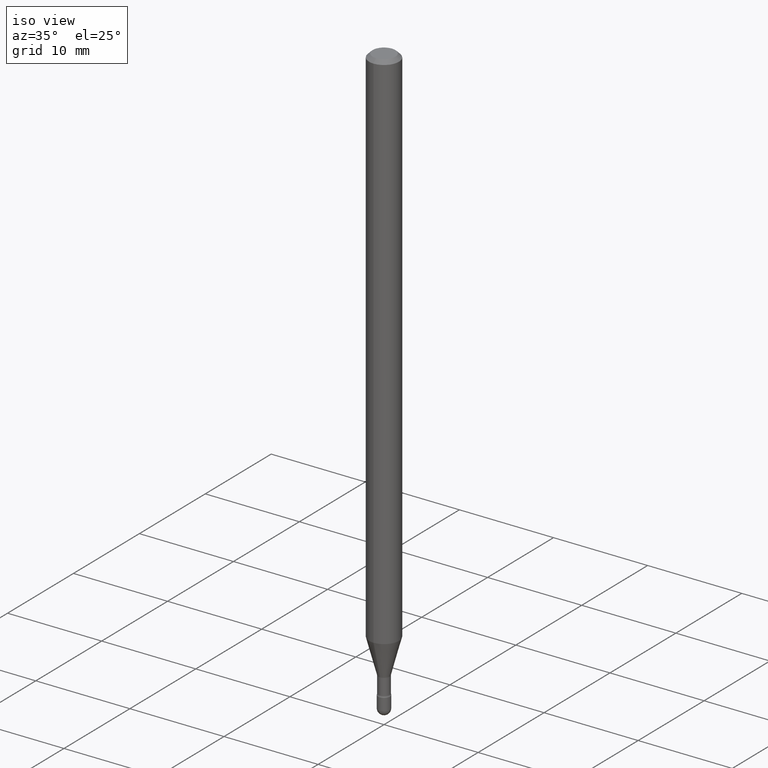
[diagram: clean part render]
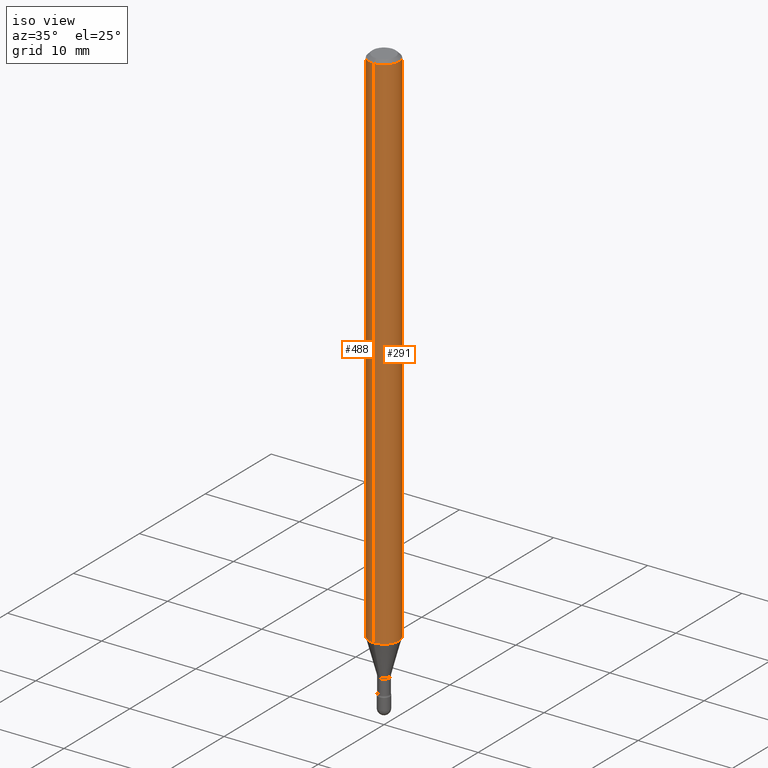
[diagram: same view with one multi-face feature highlighted, each face labeled with its STEP entity id]
A machine part, iso view. The highlighted faces form ONE feature: a constant-radius fillet chain: 2 tangent blend faces with common blend radius 1.5875 mm. The faces share edges in the B-rep.
Their STEP definitions:
[1] entity #291 (Cylinder):
#25 = DIRECTION ( 'NONE',  ( -2.445460272345158683E-29, 3.491493559787710442E-15, 1.000000000000000000 ) ) ;
#47 = CARTESIAN_POINT ( 'NONE',  ( 4.440892098501169490E-16, 0.06249999999999995837, -0.01500000000000030129 ) ) ;
#70 = DIRECTION ( 'NONE',  ( -2.445460272345158402E-29, 3.491493559787710048E-15, 1.000000000000000000 ) ) ;
#110 = VERTEX_POINT ( 'NONE', #47 ) ;
#125 = LINE ( 'NONE', #324, #346 ) ;
#146 = VERTEX_POINT ( 'NONE', #440 ) ;
#160 = DIRECTION ( 'NONE',  ( -6.982962677686265922E-15, -1.000000000000000000, 3.483106191921935554E-15 ) ) ;
#186 = ORIENTED_EDGE ( 'NONE', *, *, #460, .F. ) ;
#191 = VERTEX_POINT ( 'NONE', #475 ) ;
#197 = EDGE_CURVE ( 'NONE', #146, #191, #538, .T. ) ;
#207 = CARTESIAN_POINT ( 'NONE',  ( -1.169113584055446105E-44, 1.669184350826100908E-30, 4.780733988912460139E-16 ) ) ;
#218 = CARTESIAN_POINT ( 'NONE',  ( 3.668190408517757992E-31, -5.237240339681594062E-17, -0.01500000000000008271 ) ) ;
#222 = FACE_OUTER_BOUND ( 'NONE', #508, .T. ) ;
#262 = DIRECTION ( 'NONE',  ( -2.445460272345158402E-29, 3.491493559787710048E-15, 1.000000000000000000 ) ) ;
#269 = DIRECTION ( 'NONE',  ( -6.982962677686265922E-15, -1.000000000000000000, 3.491493559787710837E-15 ) ) ;
#278 = EDGE_CURVE ( 'NONE', #191, #110, #125, .T. ) ;
#279 = AXIS2_PLACEMENT_3D ( 'NONE', #437, #262, #308 ) ;
#281 = ORIENTED_EDGE ( 'NONE', *, *, #197, .T. ) ;
#289 = EDGE_CURVE ( 'NONE', #413, #110, #361, .T. ) ;
#291 = ADVANCED_FACE ( 'NONE', ( #222 ), #521, .T. ) ;
#307 = LINE ( 'NONE', #416, #480 ) ;
#308 = DIRECTION ( 'NONE',  ( -6.982962677686265922E-15, -1.000000000000000000, 4.370956789862821150E-15 ) ) ;
#324 = CARTESIAN_POINT ( 'NONE',  ( 4.440892098500625669E-16, 0.06250000000000000000, 2.598550514045141853E-16 ) ) ;
#336 = AXIS2_PLACEMENT_3D ( 'NONE', #218, #70, #160 ) ;
#346 = VECTOR ( 'NONE', #444, 39.37007874015748143 ) ;
#361 = CIRCLE ( 'NONE', #336, 0.06250000000000000000 ) ;
#384 = CARTESIAN_POINT ( 'NONE',  ( -4.364351673553912750E-16, -0.06250000000000005551, -0.01499999999999986587 ) ) ;
#413 = VERTEX_POINT ( 'NONE', #384 ) ;
#416 = CARTESIAN_POINT ( 'NONE',  ( -4.364351673553916201E-16, -0.06250000000000000000, 6.962917463779779905E-16 ) ) ;
#420 = AXIS2_PLACEMENT_3D ( 'NONE', #207, #436, #269 ) ;
#426 = ORIENTED_EDGE ( 'NONE', *, *, #278, .T. ) ;
#436 = DIRECTION ( 'NONE',  ( -2.445460272345158402E-29, 3.491493559787710048E-15, 1.000000000000000000 ) ) ;
#437 = CARTESIAN_POINT ( 'NONE',  ( 5.390894942624073445E-29, -7.696823042483457732E-15, -2.204450018504814590 ) ) ;
#440 = CARTESIAN_POINT ( 'NONE',  ( -4.364351673553378297E-16, -0.06250000000000771605, -2.204450018504814146 ) ) ;
#444 = DIRECTION ( 'NONE',  ( -2.445460272345158683E-29, 3.491493559787710442E-15, 1.000000000000000000 ) ) ;
#460 = EDGE_CURVE ( 'NONE', #146, #413, #307, .T. ) ;
#475 = CARTESIAN_POINT ( 'NONE',  ( 4.440892098501162587E-16, 0.06249999999999227007, -2.204450018504814590 ) ) ;
#480 = VECTOR ( 'NONE', #25, 39.37007874015748143 ) ;
#508 = EDGE_LOOP ( 'NONE', ( #281, #426, #552, #186 ) ) ;
#521 = CYLINDRICAL_SURFACE ( 'NONE', #420, 0.06250000000000000000 ) ;
#538 = CIRCLE ( 'NONE', #279, 0.06250000000000000000 ) ;
#552 = ORIENTED_EDGE ( 'NONE', *, *, #289, .F. ) ;
[2] entity #488 (Cylinder):
#11 = DIRECTION ( 'NONE',  ( -6.982962677686265922E-15, -1.000000000000000000, 4.370956789862821150E-15 ) ) ;
#25 = DIRECTION ( 'NONE',  ( -2.445460272345158683E-29, 3.491493559787710442E-15, 1.000000000000000000 ) ) ;
#47 = CARTESIAN_POINT ( 'NONE',  ( 4.440892098501169490E-16, 0.06249999999999995837, -0.01500000000000030129 ) ) ;
#48 = CARTESIAN_POINT ( 'NONE',  ( 5.390894942624073445E-29, -7.696823042483457732E-15, -2.204450018504814590 ) ) ;
#62 = ORIENTED_EDGE ( 'NONE', *, *, #283, .F. ) ;
#69 = DIRECTION ( 'NONE',  ( -2.445460272345158402E-29, 3.491493559787710048E-15, 1.000000000000000000 ) ) ;
#94 = AXIS2_PLACEMENT_3D ( 'NONE', #217, #69, #123 ) ;
#110 = VERTEX_POINT ( 'NONE', #47 ) ;
#123 = DIRECTION ( 'NONE',  ( -6.982962677686265922E-15, -1.000000000000000000, 3.491493559787710837E-15 ) ) ;
#125 = LINE ( 'NONE', #324, #346 ) ;
#146 = VERTEX_POINT ( 'NONE', #440 ) ;
#163 = AXIS2_PLACEMENT_3D ( 'NONE', #188, #452, #358 ) ;
#165 = CYLINDRICAL_SURFACE ( 'NONE', #94, 0.06250000000000000000 ) ;
#181 = ORIENTED_EDGE ( 'NONE', *, *, #460, .T. ) ;
#188 = CARTESIAN_POINT ( 'NONE',  ( 3.668190408517757992E-31, -5.237240339681594062E-17, -0.01500000000000008271 ) ) ;
#191 = VERTEX_POINT ( 'NONE', #475 ) ;
#217 = CARTESIAN_POINT ( 'NONE',  ( -1.169113584055446105E-44, 1.669184350826100908E-30, 4.780733988912460139E-16 ) ) ;
#238 = AXIS2_PLACEMENT_3D ( 'NONE', #48, #487, #11 ) ;
#247 = CIRCLE ( 'NONE', #163, 0.06250000000000000000 ) ;
#258 = FACE_OUTER_BOUND ( 'NONE', #356, .T. ) ;
#278 = EDGE_CURVE ( 'NONE', #191, #110, #125, .T. ) ;
#283 = EDGE_CURVE ( 'NONE', #110, #413, #247, .T. ) ;
#307 = LINE ( 'NONE', #416, #480 ) ;
#324 = CARTESIAN_POINT ( 'NONE',  ( 4.440892098500625669E-16, 0.06250000000000000000, 2.598550514045141853E-16 ) ) ;
#337 = ORIENTED_EDGE ( 'NONE', *, *, #278, .F. ) ;
#346 = VECTOR ( 'NONE', #444, 39.37007874015748143 ) ;
#356 = EDGE_LOOP ( 'NONE', ( #337, #373, #181, #62 ) ) ;
#358 = DIRECTION ( 'NONE',  ( -6.982962677686265922E-15, -1.000000000000000000, 3.483106191921935554E-15 ) ) ;
#373 = ORIENTED_EDGE ( 'NONE', *, *, #491, .T. ) ;
#384 = CARTESIAN_POINT ( 'NONE',  ( -4.364351673553912750E-16, -0.06250000000000005551, -0.01499999999999986587 ) ) ;
#413 = VERTEX_POINT ( 'NONE', #384 ) ;
#416 = CARTESIAN_POINT ( 'NONE',  ( -4.364351673553916201E-16, -0.06250000000000000000, 6.962917463779779905E-16 ) ) ;
#440 = CARTESIAN_POINT ( 'NONE',  ( -4.364351673553378297E-16, -0.06250000000000771605, -2.204450018504814146 ) ) ;
#444 = DIRECTION ( 'NONE',  ( -2.445460272345158683E-29, 3.491493559787710442E-15, 1.000000000000000000 ) ) ;
#452 = DIRECTION ( 'NONE',  ( -2.445460272345158402E-29, 3.491493559787710048E-15, 1.000000000000000000 ) ) ;
#460 = EDGE_CURVE ( 'NONE', #146, #413, #307, .T. ) ;
#475 = CARTESIAN_POINT ( 'NONE',  ( 4.440892098501162587E-16, 0.06249999999999227007, -2.204450018504814590 ) ) ;
#480 = VECTOR ( 'NONE', #25, 39.37007874015748143 ) ;
#487 = DIRECTION ( 'NONE',  ( -2.445460272345158402E-29, 3.491493559787710048E-15, 1.000000000000000000 ) ) ;
#488 = ADVANCED_FACE ( 'NONE', ( #258 ), #165, .T. ) ;
#491 = EDGE_CURVE ( 'NONE', #191, #146, #494, .T. ) ;
#494 = CIRCLE ( 'NONE', #238, 0.06250000000000000000 ) ;